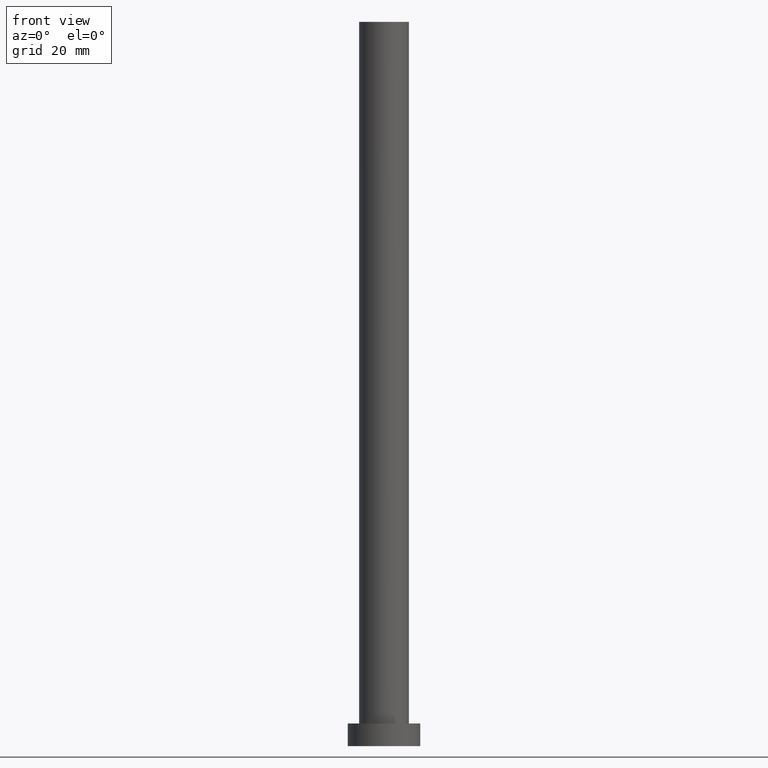
[diagram: clean part render]
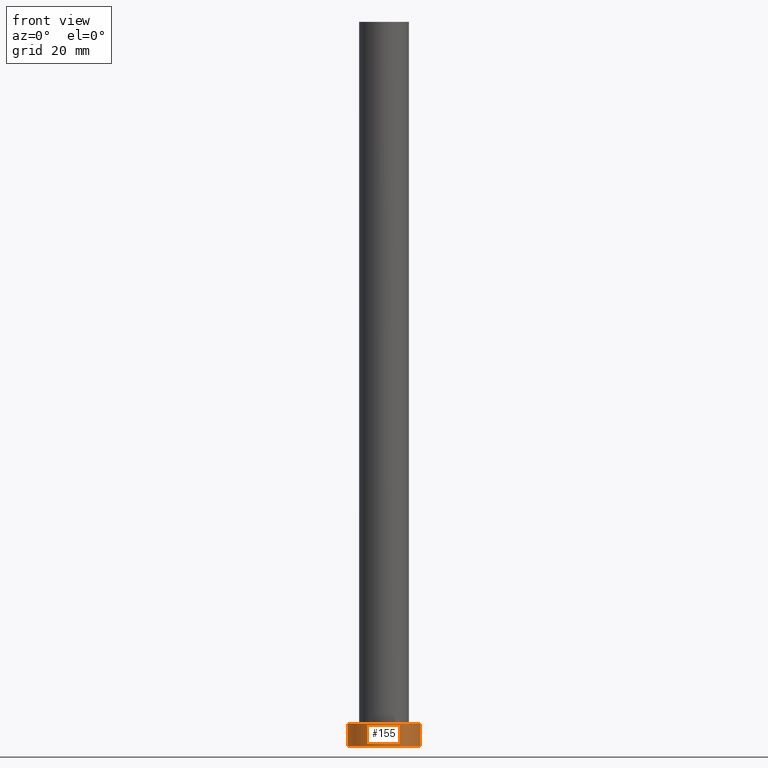
[diagram: same view with one face highlighted and labeled with its STEP entity id]
A machine part, front view. The second image highlights one B-rep face of the part: STEP entity #155.
In plain terms, the highlighted cylindrical surface (edge-blend (fillet) strip) has radius 8 mm, axis along (-0, -0, -1).
Its self-contained STEP definition (entity closure, byte-faithful):
#2 = FACE_OUTER_BOUND ( 'NONE', #150, .T. ) ;
#5 = CARTESIAN_POINT ( 'NONE',  ( -8.000000000000000000, 0.000000000000000000, 5.000000000000000000 ) ) ;
#7 = LINE ( 'NONE', #164, #197 ) ;
#16 = DIRECTION ( 'NONE',  ( -0.000000000000000000, -0.000000000000000000, -1.000000000000000000 ) ) ;
#17 = VERTEX_POINT ( 'NONE', #5 ) ;
#18 = EDGE_CURVE ( 'NONE', #116, #163, #47, .T. ) ;
#26 = DIRECTION ( 'NONE',  ( 0.000000000000000000, 0.000000000000000000, 1.000000000000000000 ) ) ;
#31 = ORIENTED_EDGE ( 'NONE', *, *, #37, .F. ) ;
#36 = AXIS2_PLACEMENT_3D ( 'NONE', #226, #142, #158 ) ;
#37 = EDGE_CURVE ( 'NONE', #17, #71, #112, .T. ) ;
#38 = CARTESIAN_POINT ( 'NONE',  ( 8.000000000000000000, 9.797174393178825657E-16, 0.000000000000000000 ) ) ;
#47 = CIRCLE ( 'NONE', #143, 8.000000000000000000 ) ;
#59 = EDGE_CURVE ( 'NONE', #17, #116, #7, .T. ) ;
#60 = CARTESIAN_POINT ( 'NONE',  ( 0.000000000000000000, 0.000000000000000000, 0.000000000000000000 ) ) ;
#61 = EDGE_CURVE ( 'NONE', #71, #163, #204, .T. ) ;
#71 = VERTEX_POINT ( 'NONE', #193 ) ;
#76 = CYLINDRICAL_SURFACE ( 'NONE', #107, 8.000000000000000000 ) ;
#79 = DIRECTION ( 'NONE',  ( 1.000000000000000000, 0.000000000000000000, 0.000000000000000000 ) ) ;
#89 = ORIENTED_EDGE ( 'NONE', *, *, #18, .T. ) ;
#91 = ORIENTED_EDGE ( 'NONE', *, *, #61, .F. ) ;
#104 = CARTESIAN_POINT ( 'NONE',  ( 8.000000000000000000, 9.797174393178825657E-16, 5.000000000000000000 ) ) ;
#107 = AXIS2_PLACEMENT_3D ( 'NONE', #238, #16, #138 ) ;
#112 = CIRCLE ( 'NONE', #36, 8.000000000000000000 ) ;
#114 = CARTESIAN_POINT ( 'NONE',  ( -8.000000000000000000, 0.000000000000000000, 0.000000000000000000 ) ) ;
#116 = VERTEX_POINT ( 'NONE', #114 ) ;
#138 = DIRECTION ( 'NONE',  ( -1.000000000000000000, 0.000000000000000000, 0.000000000000000000 ) ) ;
#142 = DIRECTION ( 'NONE',  ( 0.000000000000000000, 0.000000000000000000, 1.000000000000000000 ) ) ;
#143 = AXIS2_PLACEMENT_3D ( 'NONE', #60, #26, #79 ) ;
#150 = EDGE_LOOP ( 'NONE', ( #91, #31, #217, #89 ) ) ;
#155 = ADVANCED_FACE ( 'NONE', ( #2 ), #76, .T. ) ;
#158 = DIRECTION ( 'NONE',  ( 1.000000000000000000, 0.000000000000000000, 0.000000000000000000 ) ) ;
#159 = VECTOR ( 'NONE', #182, 1000.000000000000000 ) ;
#163 = VERTEX_POINT ( 'NONE', #38 ) ;
#164 = CARTESIAN_POINT ( 'NONE',  ( -8.000000000000000000, 0.000000000000000000, 5.000000000000000000 ) ) ;
#182 = DIRECTION ( 'NONE',  ( -0.000000000000000000, -0.000000000000000000, -1.000000000000000000 ) ) ;
#193 = CARTESIAN_POINT ( 'NONE',  ( 8.000000000000000000, 9.797174393178825657E-16, 5.000000000000000000 ) ) ;
#197 = VECTOR ( 'NONE', #224, 1000.000000000000000 ) ;
#204 = LINE ( 'NONE', #104, #159 ) ;
#217 = ORIENTED_EDGE ( 'NONE', *, *, #59, .T. ) ;
#224 = DIRECTION ( 'NONE',  ( -0.000000000000000000, -0.000000000000000000, -1.000000000000000000 ) ) ;
#226 = CARTESIAN_POINT ( 'NONE',  ( 0.000000000000000000, 0.000000000000000000, 5.000000000000000000 ) ) ;
#238 = CARTESIAN_POINT ( 'NONE',  ( 0.000000000000000000, 0.000000000000000000, 5.000000000000000000 ) ) ;